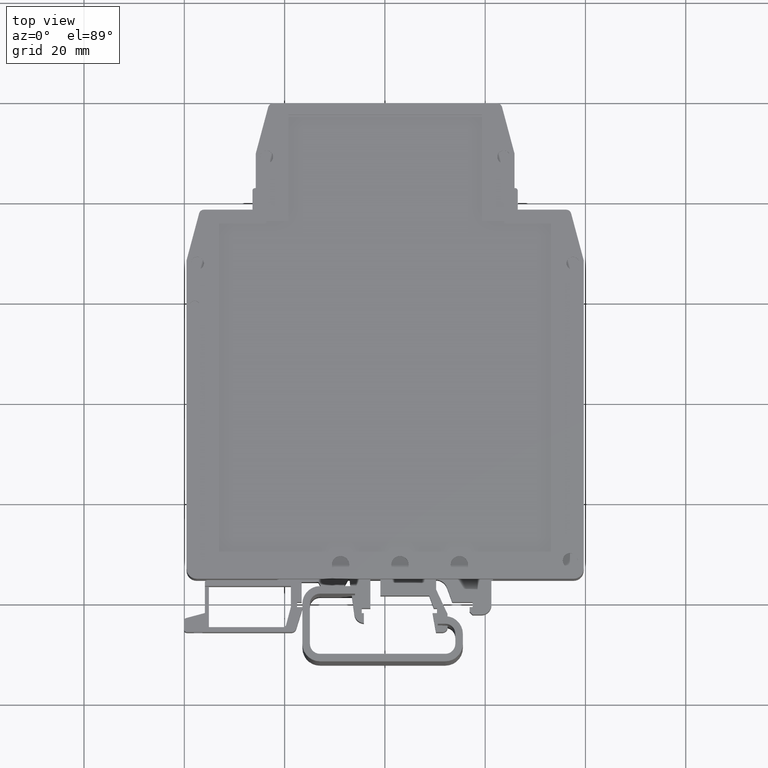
[diagram: clean part render]
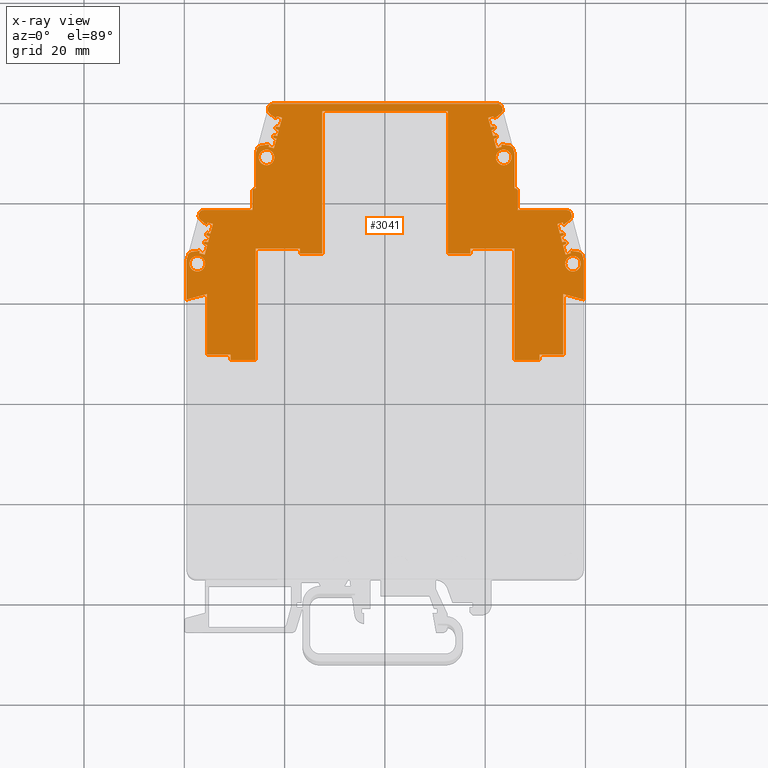
[diagram: x-ray — body ghosted, one internal face saturated and labeled with its STEP entity id]
A machine part, top view, then the same camera in x-ray: the body is ghosted and one INTERNAL B-rep face — a face not visible from any outside direction — is saturated and labeled: STEP entity #3041.
In plain terms, the highlighted planar face has unit normal (0, 0, 1).
Its self-contained STEP definition (entity closure, byte-faithful):
#194=CARTESIAN_POINT('',(-229.453884547556980,119.500269587342020,14.984999999999999));
#195=VERTEX_POINT('',#194);
#196=CARTESIAN_POINT('',(-204.353884547556990,119.500269587342020,14.984999999999999));
#197=VERTEX_POINT('',#196);
#198=CARTESIAN_POINT('',(-229.453884547556980,119.500269587342020,14.984999999999999));
#199=DIRECTION('',(1.0,0.0,0.0));
#200=VECTOR('',#199,25.099999999999994);
#201=LINE('',#198,#200);
#202=EDGE_CURVE('',#195,#197,#201,.T.);
#697=CARTESIAN_POINT('',(-181.506673253517990,97.294239564535403,14.984999999999999));
#698=VERTEX_POINT('',#697);
#705=CARTESIAN_POINT('',(-182.549873145910000,97.014714995824605,14.984999999999999));
#706=VERTEX_POINT('',#705);
#707=CARTESIAN_POINT('',(-181.506673253517990,97.294239564535403,14.984999999999999));
#708=DIRECTION('',(-0.965925826289039,-0.258819045102628,0.0));
#709=VECTOR('',#708,1.079999999999843);
#710=LINE('',#707,#709);
#711=EDGE_CURVE('',#698,#706,#710,.T.);
#1318=CARTESIAN_POINT('',(-186.103884547556990,70.950269600161292,14.984999999999999));
#1319=VERTEX_POINT('',#1318);
#1320=CARTESIAN_POINT('',(-186.103884547556990,69.900269587342095,14.984999999999999));
#1321=VERTEX_POINT('',#1320);
#1322=CARTESIAN_POINT('',(-186.103884547556990,70.950269600161292,14.984999999999999));
#1323=DIRECTION('',(0.0,-1.0,0.0));
#1324=VECTOR('',#1323,1.050000012819197);
#1325=LINE('',#1322,#1324);
#1326=EDGE_CURVE('',#1319,#1321,#1325,.T.);
#1524=CARTESIAN_POINT('',(-190.953884547556980,104.100269587342010,14.984999999999999));
#1525=VERTEX_POINT('',#1524);
#1532=CARTESIAN_POINT('',(-190.453884547556980,103.600269587342010,14.984999999999999));
#1533=VERTEX_POINT('',#1532);
#1534=CARTESIAN_POINT('',(-190.953884547556980,103.600269587342010,14.984999999999999));
#1535=DIRECTION('',(0.0,0.0,-1.0));
#1536=DIRECTION('',(-1.0,0.0,0.0));
#1537=AXIS2_PLACEMENT_3D('',#1534,#1535,#1536);
#1538=CIRCLE('',#1537,0.500000000000000);
#1539=EDGE_CURVE('',#1525,#1533,#1538,.T.);
#1758=CARTESIAN_POINT('',(-179.754227239733010,91.667495321381097,14.984999999999999));
#1759=VERTEX_POINT('',#1758);
#1766=CARTESIAN_POINT('',(-178.383343245611000,91.474830140567093,14.984999999999999));
#1767=VERTEX_POINT('',#1766);
#1768=CARTESIAN_POINT('',(-179.754227239733010,91.667495321381097,14.984999999999999));
#1769=DIRECTION('',(0.990268068741576,-0.139173100960029,0.0));
#1770=VECTOR('',#1769,1.384356455988850);
#1771=LINE('',#1768,#1770);
#1772=EDGE_CURVE('',#1759,#1767,#1771,.T.);
#1798=CARTESIAN_POINT('',(-179.942094057364980,91.455150512027586,14.984999999999999));
#1799=VERTEX_POINT('',#1798);
#1806=CARTESIAN_POINT('',(-179.947886666896010,91.499149749695093,14.984999999999999));
#1807=VERTEX_POINT('',#1806);
#1808=CARTESIAN_POINT('',(-179.777886666895990,91.499149749695093,14.984999999999999));
#1809=DIRECTION('',(0.0,0.0,-1.0));
#1810=DIRECTION('',(-1.0,0.0,0.0));
#1811=AXIS2_PLACEMENT_3D('',#1808,#1809,#1810);
#1812=CIRCLE('',#1811,0.169999999999959);
#1813=EDGE_CURVE('',#1799,#1807,#1812,.T.);
#1833=CARTESIAN_POINT('',(-173.343884547556340,123.555269587342010,14.984999999999999));
#1834=DIRECTION('',(0.0,0.0,1.0));
#1835=DIRECTION('',(1.0,0.0,0.0));
#1836=AXIS2_PLACEMENT_3D('',#1833,#1834,#1835);
#1837=PLANE('',#1836);
#1838=CARTESIAN_POINT('',(-256.503884547556990,89.800269587342214,14.984999999999999));
#1839=VERTEX_POINT('',#1838);
#1840=CARTESIAN_POINT('',(-256.503884547556990,81.943570852453078,14.984999999999999));
#1841=VERTEX_POINT('',#1840);
#1842=CARTESIAN_POINT('',(-256.503884547556990,89.800269587342214,14.984999999999999));
#1843=DIRECTION('',(0.0,-1.0,0.0));
#1844=VECTOR('',#1843,7.856698734889136);
#1845=LINE('',#1842,#1844);
#1846=EDGE_CURVE('',#1839,#1841,#1845,.T.);
#1847=ORIENTED_EDGE('',*,*,#1846,.T.);
#1848=CARTESIAN_POINT('',(-252.428884547556980,83.035463811609901,14.984999999999999));
#1849=VERTEX_POINT('',#1848);
#1850=CARTESIAN_POINT('',(-256.503884547556990,81.943570852453078,14.984999999999999));
#1851=DIRECTION('',(0.965925826289069,0.258819045102519,0.0));
#1852=VECTOR('',#1851,4.218750435171105);
#1853=LINE('',#1850,#1852);
#1854=EDGE_CURVE('',#1841,#1849,#1853,.T.);
#1855=ORIENTED_EDGE('',*,*,#1854,.T.);
#1856=CARTESIAN_POINT('',(-252.428884547556980,70.950269600161008,14.984999999999999));
#1857=VERTEX_POINT('',#1856);
#1858=CARTESIAN_POINT('',(-252.428884547556980,83.035463811609901,14.984999999999999));
#1859=DIRECTION('',(0.0,-1.0,0.0));
#1860=VECTOR('',#1859,12.085194211448893);
#1861=LINE('',#1858,#1860);
#1862=EDGE_CURVE('',#1849,#1857,#1861,.T.);
#1863=ORIENTED_EDGE('',*,*,#1862,.T.);
#1864=CARTESIAN_POINT('',(-247.703884547556980,70.950269600161008,14.984999999999999));
#1865=VERTEX_POINT('',#1864);
#1866=CARTESIAN_POINT('',(-252.428884547556980,70.950269600161008,14.984999999999999));
#1867=DIRECTION('',(1.0,0.0,0.0));
#1868=VECTOR('',#1867,4.724999999999994);
#1869=LINE('',#1866,#1868);
#1870=EDGE_CURVE('',#1857,#1865,#1869,.T.);
#1871=ORIENTED_EDGE('',*,*,#1870,.T.);
#1872=CARTESIAN_POINT('',(-247.703884547556980,69.900269587342095,14.984999999999999));
#1873=VERTEX_POINT('',#1872);
#1874=CARTESIAN_POINT('',(-247.703884547556980,70.950269600161008,14.984999999999999));
#1875=DIRECTION('',(0.0,-1.0,0.0));
#1876=VECTOR('',#1875,1.050000012818913);
#1877=LINE('',#1874,#1876);
#1878=EDGE_CURVE('',#1865,#1873,#1877,.T.);
#1879=ORIENTED_EDGE('',*,*,#1878,.T.);
#1880=CARTESIAN_POINT('',(-242.703884547556980,69.900269587342095,14.984999999999999));
#1881=VERTEX_POINT('',#1880);
#1882=CARTESIAN_POINT('',(-247.703884547556980,69.900269587342095,14.984999999999999));
#1883=DIRECTION('',(1.0,0.0,0.0));
#1884=VECTOR('',#1883,5.0);
#1885=LINE('',#1882,#1884);
#1886=EDGE_CURVE('',#1873,#1881,#1885,.T.);
#1887=ORIENTED_EDGE('',*,*,#1886,.T.);
#1888=CARTESIAN_POINT('',(-242.703884547556980,92.150269600160996,14.984999999999999));
#1889=VERTEX_POINT('',#1888);
#1890=CARTESIAN_POINT('',(-242.703884547556980,69.900269587342095,14.984999999999999));
#1891=DIRECTION('',(0.0,1.0,0.0));
#1892=VECTOR('',#1891,22.250000012818901);
#1893=LINE('',#1890,#1892);
#1894=EDGE_CURVE('',#1881,#1889,#1893,.T.);
#1895=ORIENTED_EDGE('',*,*,#1894,.T.);
#1896=CARTESIAN_POINT('',(-233.903884547556970,92.150269600160996,14.984999999999999));
#1897=VERTEX_POINT('',#1896);
#1898=CARTESIAN_POINT('',(-242.703884547556980,92.150269600160996,14.984999999999999));
#1899=DIRECTION('',(1.0,0.0,0.0));
#1900=VECTOR('',#1899,8.800000000000011);
#1901=LINE('',#1898,#1900);
#1902=EDGE_CURVE('',#1889,#1897,#1901,.T.);
#1903=ORIENTED_EDGE('',*,*,#1902,.T.);
#1904=CARTESIAN_POINT('',(-233.903884547556970,91.100269587342098,14.984999999999999));
#1905=VERTEX_POINT('',#1904);
#1906=CARTESIAN_POINT('',(-233.903884547556970,92.150269600160996,14.984999999999999));
#1907=DIRECTION('',(0.0,-1.0,0.0));
#1908=VECTOR('',#1907,1.050000012818899);
#1909=LINE('',#1906,#1908);
#1910=EDGE_CURVE('',#1897,#1905,#1909,.T.);
#1911=ORIENTED_EDGE('',*,*,#1910,.T.);
#1912=CARTESIAN_POINT('',(-229.453884547556980,91.100269587342098,14.984999999999999));
#1913=VERTEX_POINT('',#1912);
#1914=CARTESIAN_POINT('',(-233.903884547556970,91.100269587342098,14.984999999999999));
#1915=DIRECTION('',(1.0,0.0,0.0));
#1916=VECTOR('',#1915,4.449999999999989);
#1917=LINE('',#1914,#1916);
#1918=EDGE_CURVE('',#1905,#1913,#1917,.T.);
#1919=ORIENTED_EDGE('',*,*,#1918,.T.);
#1920=CARTESIAN_POINT('',(-229.453884547556980,91.100269587342098,14.984999999999999));
#1921=DIRECTION('',(0.0,1.0,0.0));
#1922=VECTOR('',#1921,28.399999999999920);
#1923=LINE('',#1920,#1922);
#1924=EDGE_CURVE('',#1913,#195,#1923,.T.);
#1925=ORIENTED_EDGE('',*,*,#1924,.T.);
#1926=ORIENTED_EDGE('',*,*,#202,.T.);
#1927=CARTESIAN_POINT('',(-204.353884547556990,91.100269587342098,14.984999999999999));
#1928=VERTEX_POINT('',#1927);
#1929=CARTESIAN_POINT('',(-204.353884547556990,119.500269587342020,14.984999999999999));
#1930=DIRECTION('',(0.0,-1.0,0.0));
#1931=VECTOR('',#1930,28.399999999999920);
#1932=LINE('',#1929,#1931);
#1933=EDGE_CURVE('',#197,#1928,#1932,.T.);
#1934=ORIENTED_EDGE('',*,*,#1933,.T.);
#1935=CARTESIAN_POINT('',(-199.903884547556970,91.100269587342098,14.984999999999999));
#1936=VERTEX_POINT('',#1935);
#1937=CARTESIAN_POINT('',(-204.353884547556990,91.100269587342098,14.984999999999999));
#1938=DIRECTION('',(1.0,0.0,0.0));
#1939=VECTOR('',#1938,4.450000000000017);
#1940=LINE('',#1937,#1939);
#1941=EDGE_CURVE('',#1928,#1936,#1940,.T.);
#1942=ORIENTED_EDGE('',*,*,#1941,.T.);
#1943=CARTESIAN_POINT('',(-199.903884547556970,92.150269600161295,14.984999999999999));
#1944=VERTEX_POINT('',#1943);
#1945=CARTESIAN_POINT('',(-199.903884547556970,91.100269587342098,14.984999999999999));
#1946=DIRECTION('',(0.0,1.0,0.0));
#1947=VECTOR('',#1946,1.050000012819197);
#1948=LINE('',#1945,#1947);
#1949=EDGE_CURVE('',#1936,#1944,#1948,.T.);
#1950=ORIENTED_EDGE('',*,*,#1949,.T.);
#1951=CARTESIAN_POINT('',(-191.103884547556990,92.150269600161295,14.984999999999999));
#1952=VERTEX_POINT('',#1951);
#1953=CARTESIAN_POINT('',(-199.903884547556970,92.150269600161295,14.984999999999999));
#1954=DIRECTION('',(1.0,0.0,0.0));
#1955=VECTOR('',#1954,8.799999999999983);
#1956=LINE('',#1953,#1955);
#1957=EDGE_CURVE('',#1944,#1952,#1956,.T.);
#1958=ORIENTED_EDGE('',*,*,#1957,.T.);
#1959=CARTESIAN_POINT('',(-191.103884547556990,69.900269587342095,14.984999999999999));
#1960=VERTEX_POINT('',#1959);
#1961=CARTESIAN_POINT('',(-191.103884547556990,69.900269587342095,14.984999999999999));
#1962=DIRECTION('',(0.0,1.0,0.0));
#1963=VECTOR('',#1962,22.250000012819200);
#1964=LINE('',#1961,#1963);
#1965=EDGE_CURVE('',#1960,#1952,#1964,.T.);
#1966=ORIENTED_EDGE('',*,*,#1965,.F.);
#1967=CARTESIAN_POINT('',(-186.103884547556990,69.900269587342095,14.984999999999999));
#1968=DIRECTION('',(-1.0,0.0,0.0));
#1969=VECTOR('',#1968,5.0);
#1970=LINE('',#1967,#1969);
#1971=EDGE_CURVE('',#1321,#1960,#1970,.T.);
#1972=ORIENTED_EDGE('',*,*,#1971,.F.);
#1973=ORIENTED_EDGE('',*,*,#1326,.F.);
#1974=CARTESIAN_POINT('',(-181.378884547556990,70.950269600161292,14.984999999999999));
#1975=VERTEX_POINT('',#1974);
#1976=CARTESIAN_POINT('',(-181.378884547556990,70.950269600161292,14.984999999999999));
#1977=DIRECTION('',(-1.0,0.0,0.0));
#1978=VECTOR('',#1977,4.724999999999994);
#1979=LINE('',#1976,#1978);
#1980=EDGE_CURVE('',#1975,#1319,#1979,.T.);
#1981=ORIENTED_EDGE('',*,*,#1980,.F.);
#1982=CARTESIAN_POINT('',(-181.378884547556990,83.035463821766498,14.984999999999999));
#1983=VERTEX_POINT('',#1982);
#1984=CARTESIAN_POINT('',(-181.378884547556990,83.035463821766498,14.984999999999999));
#1985=DIRECTION('',(0.0,-1.0,0.0));
#1986=VECTOR('',#1985,12.085194221605207);
#1987=LINE('',#1984,#1986);
#1988=EDGE_CURVE('',#1983,#1975,#1987,.T.);
#1989=ORIENTED_EDGE('',*,*,#1988,.F.);
#1990=CARTESIAN_POINT('',(-177.303884547556980,81.943570862609704,14.984999999999999));
#1991=VERTEX_POINT('',#1990);
#1992=CARTESIAN_POINT('',(-177.303884547556980,81.943570862609704,14.984999999999999));
#1993=DIRECTION('',(-0.965925826289070,0.258819045102513,0.0));
#1994=VECTOR('',#1993,4.218750435171097);
#1995=LINE('',#1992,#1994);
#1996=EDGE_CURVE('',#1991,#1983,#1995,.T.);
#1997=ORIENTED_EDGE('',*,*,#1996,.F.);
#1998=CARTESIAN_POINT('',(-177.303884547556980,89.800269587342001,14.984999999999999));
#1999=VERTEX_POINT('',#1998);
#2000=CARTESIAN_POINT('',(-177.303884547556980,89.800269587342001,14.984999999999999));
#2001=DIRECTION('',(0.0,-1.0,0.0));
#2002=VECTOR('',#2001,7.856698724732297);
#2003=LINE('',#2000,#2002);
#2004=EDGE_CURVE('',#1999,#1991,#2003,.T.);
#2005=ORIENTED_EDGE('',*,*,#2004,.F.);
#2006=CARTESIAN_POINT('',(-177.556590520281990,90.743381116927992,14.984999999999999));
#2007=VERTEX_POINT('',#2006);
#2008=CARTESIAN_POINT('',(-177.556590520281990,90.743381116927992,14.984999999999999));
#2009=DIRECTION('',(0.258819045102486,-0.965925826289078,0.0));
#2010=VECTOR('',#2009,0.976380902050486);
#2011=LINE('',#2008,#2010);
#2012=EDGE_CURVE('',#2007,#1999,#2011,.T.);
#2013=ORIENTED_EDGE('',*,*,#2012,.F.);
#2014=CARTESIAN_POINT('',(-178.522516346571000,90.484562071825493,14.984999999999999));
#2015=DIRECTION('',(0.0,0.0,-1.0));
#2016=DIRECTION('',(-1.0,0.0,0.0));
#2017=AXIS2_PLACEMENT_3D('',#2014,#2015,#2016);
#2018=CIRCLE('',#2017,0.999999999999972);
#2019=EDGE_CURVE('',#1767,#2007,#2018,.T.);
#2020=ORIENTED_EDGE('',*,*,#2019,.F.);
#2021=ORIENTED_EDGE('',*,*,#1772,.F.);
#2022=CARTESIAN_POINT('',(-179.777886666895990,91.499149749695093,14.984999999999999));
#2023=DIRECTION('',(0.0,0.0,-1.0));
#2024=DIRECTION('',(-1.0,0.0,0.0));
#2025=AXIS2_PLACEMENT_3D('',#2022,#2023,#2024);
#2026=CIRCLE('',#2025,0.169999999999959);
#2027=EDGE_CURVE('',#1807,#1759,#2026,.T.);
#2028=ORIENTED_EDGE('',*,*,#2027,.F.);
#2029=ORIENTED_EDGE('',*,*,#1813,.F.);
#2030=CARTESIAN_POINT('',(-179.876113269371980,91.208906858914204,14.984999999999999));
#2031=VERTEX_POINT('',#2030);
#2032=CARTESIAN_POINT('',(-179.876113269371980,91.208906858914204,14.984999999999999));
#2033=DIRECTION('',(-0.258819045102442,0.965925826289090,0.0));
#2034=VECTOR('',#2033,0.254930188645442);
#2035=LINE('',#2032,#2034);
#2036=EDGE_CURVE('',#2031,#1799,#2035,.T.);
#2037=ORIENTED_EDGE('',*,*,#2036,.F.);
#2038=CARTESIAN_POINT('',(-180.919313161764020,90.929382290203506,14.984999999999999));
#2039=VERTEX_POINT('',#2038);
#2040=CARTESIAN_POINT('',(-180.919313161764020,90.929382290203506,14.984999999999999));
#2041=DIRECTION('',(0.965925826289064,0.258819045102536,0.0));
#2042=VECTOR('',#2041,1.079999999999844);
#2043=LINE('',#2040,#2042);
#2044=EDGE_CURVE('',#2039,#2031,#2043,.T.);
#2045=ORIENTED_EDGE('',*,*,#2044,.F.);
#2046=CARTESIAN_POINT('',(-181.424010299713980,92.812937651467195,14.984999999999999));
#2047=VERTEX_POINT('',#2046);
#2048=CARTESIAN_POINT('',(-181.424010299713980,92.812937651467195,14.984999999999999));
#2049=DIRECTION('',(0.258819045102542,-0.965925826289063,0.0));
#2050=VECTOR('',#2049,1.950000000000017);
#2051=LINE('',#2048,#2050);
#2052=EDGE_CURVE('',#2047,#2039,#2051,.T.);
#2053=ORIENTED_EDGE('',*,*,#2052,.F.);
#2054=CARTESIAN_POINT('',(-180.989343677883990,92.929406221763202,14.984999999999999));
#2055=VERTEX_POINT('',#2054);
#2056=CARTESIAN_POINT('',(-180.989343677883990,92.929406221763202,14.984999999999999));
#2057=DIRECTION('',(-0.965925826289125,-0.258819045102307,0.0));
#2058=VECTOR('',#2057,0.449999999999880);
#2059=LINE('',#2056,#2058);
#2060=EDGE_CURVE('',#2055,#2047,#2059,.T.);
#2061=ORIENTED_EDGE('',*,*,#2060,.F.);
#2062=CARTESIAN_POINT('',(-180.766989391415020,93.219183969650004,14.984999999999999));
#2063=VERTEX_POINT('',#2062);
#2064=CARTESIAN_POINT('',(-181.066989391415010,93.219183969650004,14.984999999999999));
#2065=DIRECTION('',(0.0,0.0,-1.0));
#2066=DIRECTION('',(-1.0,0.0,0.0));
#2067=AXIS2_PLACEMENT_3D('',#2064,#2065,#2066);
#2068=CIRCLE('',#2067,0.300000000000040);
#2069=EDGE_CURVE('',#2063,#2055,#2068,.T.);
#2070=ORIENTED_EDGE('',*,*,#2069,.F.);
#2071=CARTESIAN_POINT('',(-181.144635104945990,93.508961717536693,14.984999999999999));
#2072=VERTEX_POINT('',#2071);
#2073=CARTESIAN_POINT('',(-181.066989391415010,93.219183969650004,14.984999999999999));
#2074=DIRECTION('',(0.0,0.0,-1.0));
#2075=DIRECTION('',(-1.0,0.0,0.0));
#2076=AXIS2_PLACEMENT_3D('',#2073,#2074,#2075);
#2077=CIRCLE('',#2076,0.300000000000040);
#2078=EDGE_CURVE('',#2072,#2063,#2077,.T.);
#2079=ORIENTED_EDGE('',*,*,#2078,.F.);
#2080=CARTESIAN_POINT('',(-181.579301726776010,93.392493147240600,14.984999999999999));
#2081=VERTEX_POINT('',#2080);
#2082=CARTESIAN_POINT('',(-181.579301726776010,93.392493147240600,14.984999999999999));
#2083=DIRECTION('',(0.965925826289082,0.258819045102468,0.0));
#2084=VECTOR('',#2083,0.449999999999929);
#2085=LINE('',#2082,#2084);
#2086=EDGE_CURVE('',#2081,#2072,#2085,.T.);
#2087=ORIENTED_EDGE('',*,*,#2086,.F.);
#2088=CARTESIAN_POINT('',(-181.889884580899040,94.551604138787496,14.984999999999999));
#2089=VERTEX_POINT('',#2088);
#2090=CARTESIAN_POINT('',(-181.889884580899040,94.551604138787496,14.984999999999999));
#2091=DIRECTION('',(0.258819045102519,-0.965925826289069,0.0));
#2092=VECTOR('',#2091,1.200000000000014);
#2093=LINE('',#2090,#2092);
#2094=EDGE_CURVE('',#2089,#2081,#2093,.T.);
#2095=ORIENTED_EDGE('',*,*,#2094,.F.);
#2096=CARTESIAN_POINT('',(-181.455217959069020,94.668072709083603,14.984999999999999));
#2097=VERTEX_POINT('',#2096);
#2098=CARTESIAN_POINT('',(-181.455217959069020,94.668072709083603,14.984999999999999));
#2099=DIRECTION('',(-0.965925826289074,-0.258819045102498,0.0));
#2100=VECTOR('',#2099,0.449999999999933);
#2101=LINE('',#2098,#2100);
#2102=EDGE_CURVE('',#2097,#2089,#2101,.T.);
#2103=ORIENTED_EDGE('',*,*,#2102,.F.);
#2104=CARTESIAN_POINT('',(-181.232863672599020,94.957850456970306,14.984999999999999));
#2105=VERTEX_POINT('',#2104);
#2106=CARTESIAN_POINT('',(-181.532863672599030,94.957850456970306,14.984999999999999));
#2107=DIRECTION('',(0.0,0.0,-1.0));
#2108=DIRECTION('',(-1.0,0.0,0.0));
#2109=AXIS2_PLACEMENT_3D('',#2106,#2107,#2108);
#2110=CIRCLE('',#2109,0.300000000000011);
#2111=EDGE_CURVE('',#2105,#2097,#2110,.T.);
#2112=ORIENTED_EDGE('',*,*,#2111,.F.);
#2113=CARTESIAN_POINT('',(-181.610509386129990,95.247628204857094,14.984999999999999));
#2114=VERTEX_POINT('',#2113);
#2115=CARTESIAN_POINT('',(-181.532863672599030,94.957850456970306,14.984999999999999));
#2116=DIRECTION('',(0.0,0.0,-1.0));
#2117=DIRECTION('',(-1.0,0.0,0.0));
#2118=AXIS2_PLACEMENT_3D('',#2115,#2116,#2117);
#2119=CIRCLE('',#2118,0.300000000000011);
#2120=EDGE_CURVE('',#2114,#2105,#2119,.T.);
#2121=ORIENTED_EDGE('',*,*,#2120,.F.);
#2122=CARTESIAN_POINT('',(-182.045176007960010,95.131159634560902,14.984999999999999));
#2123=VERTEX_POINT('',#2122);
#2124=CARTESIAN_POINT('',(-182.045176007960010,95.131159634560902,14.984999999999999));
#2125=DIRECTION('',(0.965925826289027,0.258819045102675,0.0));
#2126=VECTOR('',#2125,0.449999999999955);
#2127=LINE('',#2124,#2126);
#2128=EDGE_CURVE('',#2123,#2114,#2127,.T.);
#2129=ORIENTED_EDGE('',*,*,#2128,.F.);
#2130=CARTESIAN_POINT('',(-182.549873145910000,97.014714995824605,14.984999999999999));
#2131=DIRECTION('',(0.258819045102554,-0.965925826289059,0.0));
#2132=VECTOR('',#2131,1.950000000000038);
#2133=LINE('',#2130,#2132);
#2134=EDGE_CURVE('',#706,#2123,#2133,.T.);
#2135=ORIENTED_EDGE('',*,*,#2134,.F.);
#2136=ORIENTED_EDGE('',*,*,#711,.F.);
#2137=CARTESIAN_POINT('',(-181.440692465524990,97.047995911422007,14.984999999999999));
#2138=VERTEX_POINT('',#2137);
#2139=CARTESIAN_POINT('',(-181.440692465524990,97.047995911422007,14.984999999999999));
#2140=DIRECTION('',(-0.258819045102428,0.965925826289093,0.0));
#2141=VECTOR('',#2140,0.254930188645456);
#2142=LINE('',#2139,#2141);
#2143=EDGE_CURVE('',#2138,#698,#2142,.T.);
#2144=ORIENTED_EDGE('',*,*,#2143,.F.);
#2145=CARTESIAN_POINT('',(-181.171822624250980,96.958033320976099,14.984999999999999));
#2146=VERTEX_POINT('',#2145);
#2147=CARTESIAN_POINT('',(-181.276485075056000,97.091995149089300,14.984999999999999));
#2148=DIRECTION('',(0.0,0.0,-1.0));
#2149=DIRECTION('',(-1.0,0.0,0.0));
#2150=AXIS2_PLACEMENT_3D('',#2147,#2148,#2149);
#2151=CIRCLE('',#2150,0.170000000000073);
#2152=EDGE_CURVE('',#2146,#2138,#2151,.T.);
#2153=ORIENTED_EDGE('',*,*,#2152,.F.);
#2154=CARTESIAN_POINT('',(-180.080934850105990,97.810328259046997,14.984999999999999));
#2155=VERTEX_POINT('',#2154);
#2156=CARTESIAN_POINT('',(-180.080934850105990,97.810328259046997,14.984999999999999));
#2157=DIRECTION('',(-0.788010753606893,-0.615661475325439,0.0));
#2158=VECTOR('',#2157,1.384356455989672);
#2159=LINE('',#2156,#2158);
#2160=EDGE_CURVE('',#2155,#2146,#2159,.T.);
#2161=ORIENTED_EDGE('',*,*,#2160,.F.);
#2162=CARTESIAN_POINT('',(-179.696596325432010,98.598339012653710,14.984999999999999));
#2163=VERTEX_POINT('',#2162);
#2164=CARTESIAN_POINT('',(-180.696596325432010,98.598339012653710,14.984999999999999));
#2165=DIRECTION('',(0.0,0.0,-1.0));
#2166=DIRECTION('',(-1.0,0.0,0.0));
#2167=AXIS2_PLACEMENT_3D('',#2164,#2165,#2166);
#2168=CIRCLE('',#2167,0.999999999999943);
#2169=EDGE_CURVE('',#2163,#2155,#2168,.T.);
#2170=ORIENTED_EDGE('',*,*,#2169,.F.);
#2171=CARTESIAN_POINT('',(-179.730670499143030,98.857158057756209,14.984999999999999));
#2172=VERTEX_POINT('',#2171);
#2173=CARTESIAN_POINT('',(-180.696596325432010,98.598339012653710,14.984999999999999));
#2174=DIRECTION('',(0.0,0.0,-1.0));
#2175=DIRECTION('',(-1.0,0.0,0.0));
#2176=AXIS2_PLACEMENT_3D('',#2173,#2174,#2175);
#2177=CIRCLE('',#2176,0.999999999999943);
#2178=EDGE_CURVE('',#2172,#2163,#2177,.T.);
#2179=ORIENTED_EDGE('',*,*,#2178,.F.);
#2180=CARTESIAN_POINT('',(-179.784777633558010,99.059088632444713,14.984999999999999));
#2181=VERTEX_POINT('',#2180);
#2182=CARTESIAN_POINT('',(-179.784777633558010,99.059088632444713,14.984999999999999));
#2183=DIRECTION('',(0.258819045102699,-0.965925826289020,0.0));
#2184=VECTOR('',#2183,0.209053914071538);
#2185=LINE('',#2182,#2184);
#2186=EDGE_CURVE('',#2181,#2172,#2185,.T.);
#2187=ORIENTED_EDGE('',*,*,#2186,.F.);
#2188=CARTESIAN_POINT('',(-180.750703459846990,99.800269587342100,14.984999999999999));
#2189=VERTEX_POINT('',#2188);
#2190=CARTESIAN_POINT('',(-180.750703459846990,98.800269587342100,14.984999999999999));
#2191=DIRECTION('',(0.0,0.0,-1.0));
#2192=DIRECTION('',(-1.0,0.0,0.0));
#2193=AXIS2_PLACEMENT_3D('',#2190,#2191,#2192);
#2194=CIRCLE('',#2193,1.0);
#2195=EDGE_CURVE('',#2189,#2181,#2194,.T.);
#2196=ORIENTED_EDGE('',*,*,#2195,.F.);
#2197=CARTESIAN_POINT('',(-190.453884547556980,99.800269587342100,14.984999999999999));
#2198=VERTEX_POINT('',#2197);
#2199=CARTESIAN_POINT('',(-190.453884547556980,99.800269587342100,14.984999999999999));
#2200=DIRECTION('',(1.0,0.0,0.0));
#2201=VECTOR('',#2200,9.703181087709993);
#2202=LINE('',#2199,#2201);
#2203=EDGE_CURVE('',#2198,#2189,#2202,.T.);
#2204=ORIENTED_EDGE('',*,*,#2203,.F.);
#2205=CARTESIAN_POINT('',(-190.453884547556980,103.600269587342010,14.984999999999999));
#2206=DIRECTION('',(0.0,-1.0,0.0));
#2207=VECTOR('',#2206,3.799999999999912);
#2208=LINE('',#2205,#2207);
#2209=EDGE_CURVE('',#1533,#2198,#2208,.T.);
#2210=ORIENTED_EDGE('',*,*,#2209,.F.);
#2211=ORIENTED_EDGE('',*,*,#1539,.F.);
#2212=CARTESIAN_POINT('',(-191.103884547556990,104.100269587342010,14.984999999999999));
#2213=VERTEX_POINT('',#2212);
#2214=CARTESIAN_POINT('',(-191.103884547556990,104.100269587342010,14.984999999999999));
#2215=DIRECTION('',(1.0,0.0,0.0));
#2216=VECTOR('',#2215,0.150000000000006);
#2217=LINE('',#2214,#2216);
#2218=EDGE_CURVE('',#2213,#1525,#2217,.T.);
#2219=ORIENTED_EDGE('',*,*,#2218,.F.);
#2220=CARTESIAN_POINT('',(-191.103884547556990,111.000269587342020,14.984999999999999));
#2221=VERTEX_POINT('',#2220);
#2222=CARTESIAN_POINT('',(-191.103884547556990,104.100269587342010,14.984999999999999));
#2223=DIRECTION('',(0.0,1.0,0.0));
#2224=VECTOR('',#2223,6.900000000000006);
#2225=LINE('',#2222,#2224);
#2226=EDGE_CURVE('',#2213,#2221,#2225,.T.);
#2227=ORIENTED_EDGE('',*,*,#2226,.T.);
#2228=CARTESIAN_POINT('',(-191.356590520282000,111.943381116928010,14.984999999999999));
#2229=VERTEX_POINT('',#2228);
#2230=CARTESIAN_POINT('',(-191.103884547556990,111.000269587342020,14.984999999999999));
#2231=DIRECTION('',(-0.258819045102486,0.965925826289078,0.0));
#2232=VECTOR('',#2231,0.976380902050486);
#2233=LINE('',#2230,#2232);
#2234=EDGE_CURVE('',#2221,#2229,#2233,.T.);
#2235=ORIENTED_EDGE('',*,*,#2234,.T.);
#2236=CARTESIAN_POINT('',(-192.183343245610980,112.674830140567000,14.984999999999999));
#2237=VERTEX_POINT('',#2236);
#2238=CARTESIAN_POINT('',(-192.322516346571010,111.684562071826010,14.984999999999999));
#2239=DIRECTION('',(0.0,0.0,1.0));
#2240=DIRECTION('',(1.0,0.0,0.0));
#2241=AXIS2_PLACEMENT_3D('',#2238,#2239,#2240);
#2242=CIRCLE('',#2241,1.000000000000028);
#2243=EDGE_CURVE('',#2229,#2237,#2242,.T.);
#2244=ORIENTED_EDGE('',*,*,#2243,.T.);
#2245=CARTESIAN_POINT('',(-193.554227239733020,112.867495321380990,14.984999999999999));
#2246=VERTEX_POINT('',#2245);
#2247=CARTESIAN_POINT('',(-192.183343245610980,112.674830140567000,14.984999999999999));
#2248=DIRECTION('',(-0.990268068741577,0.139173100960016,0.0));
#2249=VECTOR('',#2248,1.384356455988876);
#2250=LINE('',#2247,#2249);
#2251=EDGE_CURVE('',#2237,#2246,#2250,.T.);
#2252=ORIENTED_EDGE('',*,*,#2251,.T.);
#2253=CARTESIAN_POINT('',(-193.747886666896020,112.699149749695010,14.984999999999999));
#2254=VERTEX_POINT('',#2253);
#2255=CARTESIAN_POINT('',(-193.577886666896010,112.699149749695010,14.984999999999999));
#2256=DIRECTION('',(0.0,0.0,1.0));
#2257=DIRECTION('',(1.0,0.0,0.0));
#2258=AXIS2_PLACEMENT_3D('',#2255,#2256,#2257);
#2259=CIRCLE('',#2258,0.169999999999959);
#2260=EDGE_CURVE('',#2246,#2254,#2259,.T.);
#2261=ORIENTED_EDGE('',*,*,#2260,.T.);
#2262=CARTESIAN_POINT('',(-193.742094057364990,112.655150512027990,14.984999999999999));
#2263=VERTEX_POINT('',#2262);
#2264=CARTESIAN_POINT('',(-193.577886666896010,112.699149749695010,14.984999999999999));
#2265=DIRECTION('',(0.0,0.0,1.0));
#2266=DIRECTION('',(1.0,0.0,0.0));
#2267=AXIS2_PLACEMENT_3D('',#2264,#2265,#2266);
#2268=CIRCLE('',#2267,0.169999999999959);
#2269=EDGE_CURVE('',#2254,#2263,#2268,.T.);
#2270=ORIENTED_EDGE('',*,*,#2269,.T.);
#2271=CARTESIAN_POINT('',(-193.676113269372000,112.408906858913990,14.984999999999999));
#2272=VERTEX_POINT('',#2271);
#2273=CARTESIAN_POINT('',(-193.742094057364990,112.655150512027990,14.984999999999999));
#2274=DIRECTION('',(0.258819045101842,-0.965925826289250,0.0));
#2275=VECTOR('',#2274,0.254930188646032);
#2276=LINE('',#2273,#2275);
#2277=EDGE_CURVE('',#2263,#2272,#2276,.T.);
#2278=ORIENTED_EDGE('',*,*,#2277,.T.);
#2279=CARTESIAN_POINT('',(-194.719313161764010,112.129382290202980,14.984999999999999));
#2280=VERTEX_POINT('',#2279);
#2281=CARTESIAN_POINT('',(-193.676113269372000,112.408906858913990,14.984999999999999));
#2282=DIRECTION('',(-0.965925826288990,-0.258819045102813,0.0));
#2283=VECTOR('',#2282,1.079999999999898);
#2284=LINE('',#2281,#2283);
#2285=EDGE_CURVE('',#2272,#2280,#2284,.T.);
#2286=ORIENTED_EDGE('',*,*,#2285,.T.);
#2287=CARTESIAN_POINT('',(-195.224010299714000,114.012937651467000,14.984999999999999));
#2288=VERTEX_POINT('',#2287);
#2289=CARTESIAN_POINT('',(-194.719313161764010,112.129382290202980,14.984999999999999));
#2290=DIRECTION('',(-0.258819045102514,0.965925826289070,0.0));
#2291=VECTOR('',#2290,1.950000000000340);
#2292=LINE('',#2289,#2291);
#2293=EDGE_CURVE('',#2280,#2288,#2292,.T.);
#2294=ORIENTED_EDGE('',*,*,#2293,.T.);
#2295=CARTESIAN_POINT('',(-194.789343677884010,114.129406221762990,14.984999999999999));
#2296=VERTEX_POINT('',#2295);
#2297=CARTESIAN_POINT('',(-195.224010299714000,114.012937651467000,14.984999999999999));
#2298=DIRECTION('',(0.965925826289133,0.258819045102278,0.0));
#2299=VECTOR('',#2298,0.449999999999876);
#2300=LINE('',#2297,#2299);
#2301=EDGE_CURVE('',#2288,#2296,#2300,.T.);
#2302=ORIENTED_EDGE('',*,*,#2301,.T.);
#2303=CARTESIAN_POINT('',(-194.566989391415010,114.419183969649990,14.984999999999999));
#2304=VERTEX_POINT('',#2303);
#2305=CARTESIAN_POINT('',(-194.866989391415020,114.419183969649990,14.984999999999999));
#2306=DIRECTION('',(0.0,0.0,1.0));
#2307=DIRECTION('',(1.0,0.0,0.0));
#2308=AXIS2_PLACEMENT_3D('',#2305,#2306,#2307);
#2309=CIRCLE('',#2308,0.299999999999983);
#2310=EDGE_CURVE('',#2296,#2304,#2309,.T.);
#2311=ORIENTED_EDGE('',*,*,#2310,.T.);
#2312=CARTESIAN_POINT('',(-194.944635104946000,114.708961717536990,14.984999999999999));
#2313=VERTEX_POINT('',#2312);
#2314=CARTESIAN_POINT('',(-194.866989391415020,114.419183969649990,14.984999999999999));
#2315=DIRECTION('',(0.0,0.0,1.0));
#2316=DIRECTION('',(1.0,0.0,0.0));
#2317=AXIS2_PLACEMENT_3D('',#2314,#2315,#2316);
#2318=CIRCLE('',#2317,0.299999999999983);
#2319=EDGE_CURVE('',#2304,#2313,#2318,.T.);
#2320=ORIENTED_EDGE('',*,*,#2319,.T.);
#2321=CARTESIAN_POINT('',(-195.379301726775990,114.592493147241000,14.984999999999999));
#2322=VERTEX_POINT('',#2321);
#2323=CARTESIAN_POINT('',(-194.944635104946000,114.708961717536990,14.984999999999999));
#2324=DIRECTION('',(-0.965925826289133,-0.258819045102278,0.0));
#2325=VECTOR('',#2324,0.449999999999876);
#2326=LINE('',#2323,#2325);
#2327=EDGE_CURVE('',#2313,#2322,#2326,.T.);
#2328=ORIENTED_EDGE('',*,*,#2327,.T.);
#2329=CARTESIAN_POINT('',(-195.689884580899020,115.751604138787000,14.984999999999999));
#2330=VERTEX_POINT('',#2329);
#2331=CARTESIAN_POINT('',(-195.379301726775990,114.592493147241000,14.984999999999999));
#2332=DIRECTION('',(-0.258819045102706,0.965925826289019,0.0));
#2333=VECTOR('',#2332,1.199999999999150);
#2334=LINE('',#2331,#2333);
#2335=EDGE_CURVE('',#2322,#2330,#2334,.T.);
#2336=ORIENTED_EDGE('',*,*,#2335,.T.);
#2337=CARTESIAN_POINT('',(-195.255217959069030,115.868072709084000,14.984999999999999));
#2338=VERTEX_POINT('',#2337);
#2339=CARTESIAN_POINT('',(-195.689884580899020,115.751604138787000,14.984999999999999));
#2340=DIRECTION('',(0.965925826288573,0.258819045104370,0.0));
#2341=VECTOR('',#2340,0.450000000000137);
#2342=LINE('',#2339,#2341);
#2343=EDGE_CURVE('',#2330,#2338,#2342,.T.);
#2344=ORIENTED_EDGE('',*,*,#2343,.T.);
#2345=CARTESIAN_POINT('',(-195.032863672600000,116.157850456970010,14.984999999999999));
#2346=VERTEX_POINT('',#2345);
#2347=CARTESIAN_POINT('',(-195.332863672600010,116.157850456970010,14.984999999999999));
#2348=DIRECTION('',(0.0,0.0,1.0));
#2349=DIRECTION('',(1.0,0.0,0.0));
#2350=AXIS2_PLACEMENT_3D('',#2347,#2348,#2349);
#2351=CIRCLE('',#2350,0.299999999999983);
#2352=EDGE_CURVE('',#2338,#2346,#2351,.T.);
#2353=ORIENTED_EDGE('',*,*,#2352,.T.);
#2354=CARTESIAN_POINT('',(-195.410509386130000,116.447628204856980,14.984999999999999));
#2355=VERTEX_POINT('',#2354);
#2356=CARTESIAN_POINT('',(-195.332863672600010,116.157850456970010,14.984999999999999));
#2357=DIRECTION('',(0.0,0.0,1.0));
#2358=DIRECTION('',(1.0,0.0,0.0));
#2359=AXIS2_PLACEMENT_3D('',#2356,#2357,#2358);
#2360=CIRCLE('',#2359,0.299999999999983);
#2361=EDGE_CURVE('',#2346,#2355,#2360,.T.);
#2362=ORIENTED_EDGE('',*,*,#2361,.T.);
#2363=CARTESIAN_POINT('',(-195.845176007961020,116.331159634561000,14.984999999999999));
#2364=VERTEX_POINT('',#2363);
#2365=CARTESIAN_POINT('',(-195.410509386130000,116.447628204856980,14.984999999999999));
#2366=DIRECTION('',(-0.965925826289294,-0.258819045101680,0.0));
#2367=VECTOR('',#2366,0.450000000000861);
#2368=LINE('',#2365,#2367);
#2369=EDGE_CURVE('',#2355,#2364,#2368,.T.);
#2370=ORIENTED_EDGE('',*,*,#2369,.T.);
#2371=CARTESIAN_POINT('',(-196.349873145910010,118.214714995824990,14.984999999999999));
#2372=VERTEX_POINT('',#2371);
#2373=CARTESIAN_POINT('',(-195.845176007961020,116.331159634561000,14.984999999999999));
#2374=DIRECTION('',(-0.258819045102041,0.965925826289197,0.0));
#2375=VECTOR('',#2374,1.950000000000055);
#2376=LINE('',#2373,#2375);
#2377=EDGE_CURVE('',#2364,#2372,#2376,.T.);
#2378=ORIENTED_EDGE('',*,*,#2377,.T.);
#2379=CARTESIAN_POINT('',(-195.306673253518000,118.494239564534990,14.984999999999999));
#2380=VERTEX_POINT('',#2379);
#2381=CARTESIAN_POINT('',(-196.349873145910010,118.214714995824990,14.984999999999999));
#2382=DIRECTION('',(0.965925826289224,0.258819045101941,0.0));
#2383=VECTOR('',#2382,1.079999999999637);
#2384=LINE('',#2381,#2383);
#2385=EDGE_CURVE('',#2372,#2380,#2384,.T.);
#2386=ORIENTED_EDGE('',*,*,#2385,.T.);
#2387=CARTESIAN_POINT('',(-195.240692465525000,118.247995911422010,14.984999999999999));
#2388=VERTEX_POINT('',#2387);
#2389=CARTESIAN_POINT('',(-195.306673253518000,118.494239564534990,14.984999999999999));
#2390=DIRECTION('',(0.258819045102832,-0.965925826288985,0.0));
#2391=VECTOR('',#2390,0.254930188645057);
#2392=LINE('',#2389,#2391);
#2393=EDGE_CURVE('',#2380,#2388,#2392,.T.);
#2394=ORIENTED_EDGE('',*,*,#2393,.T.);
#2395=CARTESIAN_POINT('',(-194.971822624250990,118.158033320975990,14.984999999999999));
#2396=VERTEX_POINT('',#2395);
#2397=CARTESIAN_POINT('',(-195.076485075056010,118.291995149089000,14.984999999999999));
#2398=DIRECTION('',(0.0,0.0,1.0));
#2399=DIRECTION('',(1.0,0.0,0.0));
#2400=AXIS2_PLACEMENT_3D('',#2397,#2398,#2399);
#2401=CIRCLE('',#2400,0.169999999999959);
#2402=EDGE_CURVE('',#2388,#2396,#2401,.T.);
#2403=ORIENTED_EDGE('',*,*,#2402,.T.);
#2404=CARTESIAN_POINT('',(-193.880934850106000,119.010328259046990,14.984999999999999));
#2405=VERTEX_POINT('',#2404);
#2406=CARTESIAN_POINT('',(-194.971822624250990,118.158033320975990,14.984999999999999));
#2407=DIRECTION('',(0.788010753606858,0.615661475325484,0.0));
#2408=VECTOR('',#2407,1.384356455989733);
#2409=LINE('',#2406,#2408);
#2410=EDGE_CURVE('',#2396,#2405,#2409,.T.);
#2411=ORIENTED_EDGE('',*,*,#2410,.T.);
#2412=CARTESIAN_POINT('',(-193.496596325431990,119.798339012654000,14.984999999999999));
#2413=VERTEX_POINT('',#2412);
#2414=CARTESIAN_POINT('',(-194.496596325431990,119.798339012654000,14.984999999999999));
#2415=DIRECTION('',(0.0,0.0,1.0));
#2416=DIRECTION('',(1.0,0.0,0.0));
#2417=AXIS2_PLACEMENT_3D('',#2414,#2415,#2416);
#2418=CIRCLE('',#2417,1.0);
#2419=EDGE_CURVE('',#2405,#2413,#2418,.T.);
#2420=ORIENTED_EDGE('',*,*,#2419,.T.);
#2421=CARTESIAN_POINT('',(-193.530670499143010,120.057158057756010,14.984999999999999));
#2422=VERTEX_POINT('',#2421);
#2423=CARTESIAN_POINT('',(-194.496596325431990,119.798339012654000,14.984999999999999));
#2424=DIRECTION('',(0.0,0.0,1.0));
#2425=DIRECTION('',(1.0,0.0,0.0));
#2426=AXIS2_PLACEMENT_3D('',#2423,#2424,#2425);
#2427=CIRCLE('',#2426,1.0);
#2428=EDGE_CURVE('',#2413,#2422,#2427,.T.);
#2429=ORIENTED_EDGE('',*,*,#2428,.T.);
#2430=CARTESIAN_POINT('',(-193.584777633557990,120.259088632444990,14.984999999999999));
#2431=VERTEX_POINT('',#2430);
#2432=CARTESIAN_POINT('',(-193.530670499143010,120.057158057756010,14.984999999999999));
#2433=DIRECTION('',(-0.258819045102138,0.965925826289171,0.0));
#2434=VECTOR('',#2433,0.209053914071991);
#2435=LINE('',#2432,#2434);
#2436=EDGE_CURVE('',#2422,#2431,#2435,.T.);
#2437=ORIENTED_EDGE('',*,*,#2436,.T.);
#2438=CARTESIAN_POINT('',(-194.550703459847000,121.000269587342020,14.984999999999999));
#2439=VERTEX_POINT('',#2438);
#2440=CARTESIAN_POINT('',(-194.550703459847000,120.000269587342020,14.984999999999999));
#2441=DIRECTION('',(0.0,0.0,1.0));
#2442=DIRECTION('',(1.0,0.0,0.0));
#2443=AXIS2_PLACEMENT_3D('',#2440,#2441,#2442);
#2444=CIRCLE('',#2443,0.999999999999943);
#2445=EDGE_CURVE('',#2431,#2439,#2444,.T.);
#2446=ORIENTED_EDGE('',*,*,#2445,.T.);
#2447=CARTESIAN_POINT('',(-239.257065635267000,121.000269587342020,14.984999999999999));
#2448=VERTEX_POINT('',#2447);
#2449=CARTESIAN_POINT('',(-194.550703459847000,121.000269587342020,14.984999999999999));
#2450=DIRECTION('',(-1.0,0.0,0.0));
#2451=VECTOR('',#2450,44.706362175419997);
#2452=LINE('',#2449,#2451);
#2453=EDGE_CURVE('',#2439,#2448,#2452,.T.);
#2454=ORIENTED_EDGE('',*,*,#2453,.T.);
#2455=CARTESIAN_POINT('',(-240.222991461556010,120.259088632444990,14.984999999999999));
#2456=VERTEX_POINT('',#2455);
#2457=CARTESIAN_POINT('',(-239.257065635267000,120.000269587342020,14.984999999999999));
#2458=DIRECTION('',(0.0,0.0,1.0));
#2459=DIRECTION('',(1.0,0.0,0.0));
#2460=AXIS2_PLACEMENT_3D('',#2457,#2458,#2459);
#2461=CIRCLE('',#2460,1.0);
#2462=EDGE_CURVE('',#2448,#2456,#2461,.T.);
#2463=ORIENTED_EDGE('',*,*,#2462,.T.);
#2464=CARTESIAN_POINT('',(-240.277098595970980,120.057158057756010,14.984999999999999));
#2465=VERTEX_POINT('',#2464);
#2466=CARTESIAN_POINT('',(-240.222991461556010,120.259088632444990,14.984999999999999));
#2467=DIRECTION('',(-0.258819045102138,-0.965925826289171,0.0));
#2468=VECTOR('',#2467,0.209053914071991);
#2469=LINE('',#2466,#2468);
#2470=EDGE_CURVE('',#2456,#2465,#2469,.T.);
#2471=ORIENTED_EDGE('',*,*,#2470,.T.);
#2472=CARTESIAN_POINT('',(-240.311172769680980,119.798339012654000,14.984999999999999));
#2473=VERTEX_POINT('',#2472);
#2474=CARTESIAN_POINT('',(-239.311172769680980,119.798339012654000,14.984999999999999));
#2475=DIRECTION('',(0.0,0.0,1.0));
#2476=DIRECTION('',(1.0,0.0,0.0));
#2477=AXIS2_PLACEMENT_3D('',#2474,#2475,#2476);
#2478=CIRCLE('',#2477,0.999999999999943);
#2479=EDGE_CURVE('',#2465,#2473,#2478,.T.);
#2480=ORIENTED_EDGE('',*,*,#2479,.T.);
#2481=CARTESIAN_POINT('',(-239.926834245007000,119.010328259046990,14.984999999999999));
#2482=VERTEX_POINT('',#2481);
#2483=CARTESIAN_POINT('',(-239.311172769680980,119.798339012654000,14.984999999999999));
#2484=DIRECTION('',(0.0,0.0,1.0));
#2485=DIRECTION('',(1.0,0.0,0.0));
#2486=AXIS2_PLACEMENT_3D('',#2483,#2484,#2485);
#2487=CIRCLE('',#2486,0.999999999999943);
#2488=EDGE_CURVE('',#2473,#2482,#2487,.T.);
#2489=ORIENTED_EDGE('',*,*,#2488,.T.);
#2490=CARTESIAN_POINT('',(-238.835946470862980,118.158033320975990,14.984999999999999));
#2491=VERTEX_POINT('',#2490);
#2492=CARTESIAN_POINT('',(-239.926834245007000,119.010328259046990,14.984999999999999));
#2493=DIRECTION('',(0.788010753606593,-0.615661475325823,0.0));
#2494=VECTOR('',#2493,1.384356455988971);
#2495=LINE('',#2492,#2494);
#2496=EDGE_CURVE('',#2482,#2491,#2495,.T.);
#2497=ORIENTED_EDGE('',*,*,#2496,.T.);
#2498=CARTESIAN_POINT('',(-238.567076629588030,118.247995911422010,14.984999999999999));
#2499=VERTEX_POINT('',#2498);
#2500=CARTESIAN_POINT('',(-238.731284020058010,118.291995149089000,14.984999999999999));
#2501=DIRECTION('',(0.0,0.0,1.0));
#2502=DIRECTION('',(1.0,0.0,0.0));
#2503=AXIS2_PLACEMENT_3D('',#2500,#2501,#2502);
#2504=CIRCLE('',#2503,0.169999999999987);
#2505=EDGE_CURVE('',#2491,#2499,#2504,.T.);
#2506=ORIENTED_EDGE('',*,*,#2505,.T.);
#2507=CARTESIAN_POINT('',(-238.501095841595000,118.494239564534990,14.984999999999999));
#2508=VERTEX_POINT('',#2507);
#2509=CARTESIAN_POINT('',(-238.567076629588030,118.247995911422010,14.984999999999999));
#2510=DIRECTION('',(0.258819045102936,0.965925826288957,0.0));
#2511=VECTOR('',#2510,0.254930188645065);
#2512=LINE('',#2509,#2511);
#2513=EDGE_CURVE('',#2499,#2508,#2512,.T.);
#2514=ORIENTED_EDGE('',*,*,#2513,.T.);
#2515=CARTESIAN_POINT('',(-237.457895949203020,118.214714995824990,14.984999999999999));
#2516=VERTEX_POINT('',#2515);
#2517=CARTESIAN_POINT('',(-238.501095841595000,118.494239564534990,14.984999999999999));
#2518=DIRECTION('',(0.965925826289222,-0.258819045101947,0.0));
#2519=VECTOR('',#2518,1.079999999999609);
#2520=LINE('',#2517,#2519);
#2521=EDGE_CURVE('',#2508,#2516,#2520,.T.);
#2522=ORIENTED_EDGE('',*,*,#2521,.T.);
#2523=CARTESIAN_POINT('',(-237.962593087152980,116.331159634561000,14.984999999999999));
#2524=VERTEX_POINT('',#2523);
#2525=CARTESIAN_POINT('',(-237.457895949203020,118.214714995824990,14.984999999999999));
#2526=DIRECTION('',(-0.258819045102504,-0.965925826289073,0.0));
#2527=VECTOR('',#2526,1.950000000000305);
#2528=LINE('',#2525,#2527);
#2529=EDGE_CURVE('',#2516,#2524,#2528,.T.);
#2530=ORIENTED_EDGE('',*,*,#2529,.T.);
#2531=CARTESIAN_POINT('',(-238.397259708984000,116.447628204856980,14.984999999999999));
#2532=VERTEX_POINT('',#2531);
#2533=CARTESIAN_POINT('',(-237.962593087152980,116.331159634561000,14.984999999999999));
#2534=DIRECTION('',(-0.965925826289294,0.258819045101680,0.0));
#2535=VECTOR('',#2534,0.450000000000861);
#2536=LINE('',#2533,#2535);
#2537=EDGE_CURVE('',#2524,#2532,#2536,.T.);
#2538=ORIENTED_EDGE('',*,*,#2537,.T.);
#2539=CARTESIAN_POINT('',(-238.774905422514000,116.157850456970010,14.984999999999999));
#2540=VERTEX_POINT('',#2539);
#2541=CARTESIAN_POINT('',(-238.474905422513980,116.157850456970010,14.984999999999999));
#2542=DIRECTION('',(0.0,0.0,1.0));
#2543=DIRECTION('',(1.0,0.0,0.0));
#2544=AXIS2_PLACEMENT_3D('',#2541,#2542,#2543);
#2545=CIRCLE('',#2544,0.299999999999983);
#2546=EDGE_CURVE('',#2532,#2540,#2545,.T.);
#2547=ORIENTED_EDGE('',*,*,#2546,.T.);
#2548=CARTESIAN_POINT('',(-238.552551136045000,115.868072709084000,14.984999999999999));
#2549=VERTEX_POINT('',#2548);
#2550=CARTESIAN_POINT('',(-238.474905422513980,116.157850456970010,14.984999999999999));
#2551=DIRECTION('',(0.0,0.0,1.0));
#2552=DIRECTION('',(1.0,0.0,0.0));
#2553=AXIS2_PLACEMENT_3D('',#2550,#2551,#2552);
#2554=CIRCLE('',#2553,0.299999999999983);
#2555=EDGE_CURVE('',#2540,#2549,#2554,.T.);
#2556=ORIENTED_EDGE('',*,*,#2555,.T.);
#2557=CARTESIAN_POINT('',(-238.117884514214980,115.751604138787000,14.984999999999999));
#2558=VERTEX_POINT('',#2557);
#2559=CARTESIAN_POINT('',(-238.552551136045000,115.868072709084000,14.984999999999999));
#2560=DIRECTION('',(0.965925826288577,-0.258819045104354,0.0));
#2561=VECTOR('',#2560,0.450000000000164);
#2562=LINE('',#2559,#2561);
#2563=EDGE_CURVE('',#2549,#2558,#2562,.T.);
#2564=ORIENTED_EDGE('',*,*,#2563,.T.);
#2565=CARTESIAN_POINT('',(-238.428467368337980,114.592493147241000,14.984999999999999));
#2566=VERTEX_POINT('',#2565);
#2567=CARTESIAN_POINT('',(-238.117884514214980,115.751604138787000,14.984999999999999));
#2568=DIRECTION('',(-0.258819045102684,-0.965925826289025,0.0));
#2569=VECTOR('',#2568,1.199999999999142);
#2570=LINE('',#2567,#2569);
#2571=EDGE_CURVE('',#2558,#2566,#2570,.T.);
#2572=ORIENTED_EDGE('',*,*,#2571,.T.);
#2573=CARTESIAN_POINT('',(-238.863133990168000,114.708961717536990,14.984999999999999));
#2574=VERTEX_POINT('',#2573);
#2575=CARTESIAN_POINT('',(-238.428467368337980,114.592493147241000,14.984999999999999));
#2576=DIRECTION('',(-0.965925826289138,0.258819045102262,0.0));
#2577=VECTOR('',#2576,0.449999999999903);
#2578=LINE('',#2575,#2577);
#2579=EDGE_CURVE('',#2566,#2574,#2578,.T.);
#2580=ORIENTED_EDGE('',*,*,#2579,.T.);
#2581=CARTESIAN_POINT('',(-239.240779703698000,114.419183969649990,14.984999999999999));
#2582=VERTEX_POINT('',#2581);
#2583=CARTESIAN_POINT('',(-238.940779703698980,114.419183969649990,14.984999999999999));
#2584=DIRECTION('',(0.0,0.0,1.0));
#2585=DIRECTION('',(1.0,0.0,0.0));
#2586=AXIS2_PLACEMENT_3D('',#2583,#2584,#2585);
#2587=CIRCLE('',#2586,0.299999999999983);
#2588=EDGE_CURVE('',#2574,#2582,#2587,.T.);
#2589=ORIENTED_EDGE('',*,*,#2588,.T.);
#2590=CARTESIAN_POINT('',(-239.018425417229000,114.129406221762990,14.984999999999999));
#2591=VERTEX_POINT('',#2590);
#2592=CARTESIAN_POINT('',(-238.940779703698980,114.419183969649990,14.984999999999999));
#2593=DIRECTION('',(0.0,0.0,1.0));
#2594=DIRECTION('',(1.0,0.0,0.0));
#2595=AXIS2_PLACEMENT_3D('',#2592,#2593,#2594);
#2596=CIRCLE('',#2595,0.299999999999983);
#2597=EDGE_CURVE('',#2582,#2591,#2596,.T.);
#2598=ORIENTED_EDGE('',*,*,#2597,.T.);
#2599=CARTESIAN_POINT('',(-238.583758795398980,114.012937651467000,14.984999999999999));
#2600=VERTEX_POINT('',#2599);
#2601=CARTESIAN_POINT('',(-239.018425417229000,114.129406221762990,14.984999999999999));
#2602=DIRECTION('',(0.965925826289138,-0.258819045102262,0.0));
#2603=VECTOR('',#2602,0.449999999999903);
#2604=LINE('',#2601,#2603);
#2605=EDGE_CURVE('',#2591,#2600,#2604,.T.);
#2606=ORIENTED_EDGE('',*,*,#2605,.T.);
#2607=CARTESIAN_POINT('',(-239.088455933349000,112.129382290202980,14.984999999999999));
#2608=VERTEX_POINT('',#2607);
#2609=CARTESIAN_POINT('',(-238.583758795398980,114.012937651467000,14.984999999999999));
#2610=DIRECTION('',(-0.258819045102527,-0.965925826289067,0.0));
#2611=VECTOR('',#2610,1.950000000000348);
#2612=LINE('',#2609,#2611);
#2613=EDGE_CURVE('',#2600,#2608,#2612,.T.);
#2614=ORIENTED_EDGE('',*,*,#2613,.T.);
#2615=CARTESIAN_POINT('',(-240.131655825741010,112.408906858913990,14.984999999999999));
#2616=VERTEX_POINT('',#2615);
#2617=CARTESIAN_POINT('',(-239.088455933349000,112.129382290202980,14.984999999999999));
#2618=DIRECTION('',(-0.965925826288990,0.258819045102813,0.0));
#2619=VECTOR('',#2618,1.079999999999898);
#2620=LINE('',#2617,#2619);
#2621=EDGE_CURVE('',#2608,#2616,#2620,.T.);
#2622=ORIENTED_EDGE('',*,*,#2621,.T.);
#2623=CARTESIAN_POINT('',(-240.065675037748010,112.655150512027990,14.984999999999999));
#2624=VERTEX_POINT('',#2623);
#2625=CARTESIAN_POINT('',(-240.131655825741010,112.408906858913990,14.984999999999999));
#2626=DIRECTION('',(0.258819045101842,0.965925826289250,0.0));
#2627=VECTOR('',#2626,0.254930188646032);
#2628=LINE('',#2625,#2627);
#2629=EDGE_CURVE('',#2616,#2624,#2628,.T.);
#2630=ORIENTED_EDGE('',*,*,#2629,.T.);
#2631=CARTESIAN_POINT('',(-240.059882428217010,112.699149749695010,14.984999999999999));
#2632=VERTEX_POINT('',#2631);
#2633=CARTESIAN_POINT('',(-240.229882428216970,112.699149749695010,14.984999999999999));
#2634=DIRECTION('',(0.0,0.0,1.0));
#2635=DIRECTION('',(1.0,0.0,0.0));
#2636=AXIS2_PLACEMENT_3D('',#2633,#2634,#2635);
#2637=CIRCLE('',#2636,0.169999999999959);
#2638=EDGE_CURVE('',#2624,#2632,#2637,.T.);
#2639=ORIENTED_EDGE('',*,*,#2638,.T.);
#2640=CARTESIAN_POINT('',(-240.253541855381000,112.867495321380990,14.984999999999999));
#2641=VERTEX_POINT('',#2640);
#2642=CARTESIAN_POINT('',(-240.229882428216970,112.699149749695010,14.984999999999999));
#2643=DIRECTION('',(0.0,0.0,1.0));
#2644=DIRECTION('',(1.0,0.0,0.0));
#2645=AXIS2_PLACEMENT_3D('',#2642,#2643,#2644);
#2646=CIRCLE('',#2645,0.169999999999959);
#2647=EDGE_CURVE('',#2632,#2641,#2646,.T.);
#2648=ORIENTED_EDGE('',*,*,#2647,.T.);
#2649=CARTESIAN_POINT('',(-241.624425849502980,112.674830140567000,14.984999999999999));
#2650=VERTEX_POINT('',#2649);
#2651=CARTESIAN_POINT('',(-240.253541855381000,112.867495321380990,14.984999999999999));
#2652=DIRECTION('',(-0.990268068741577,-0.139173100960021,0.0));
#2653=VECTOR('',#2652,1.384356455988820);
#2654=LINE('',#2651,#2653);
#2655=EDGE_CURVE('',#2641,#2650,#2654,.T.);
#2656=ORIENTED_EDGE('',*,*,#2655,.T.);
#2657=CARTESIAN_POINT('',(-242.451178574832000,111.943381116928010,14.984999999999999));
#2658=VERTEX_POINT('',#2657);
#2659=CARTESIAN_POINT('',(-241.485252748543020,111.684562071826010,14.984999999999999));
#2660=DIRECTION('',(0.0,0.0,1.0));
#2661=DIRECTION('',(1.0,0.0,0.0));
#2662=AXIS2_PLACEMENT_3D('',#2659,#2660,#2661);
#2663=CIRCLE('',#2662,1.000000000000028);
#2664=EDGE_CURVE('',#2650,#2658,#2663,.T.);
#2665=ORIENTED_EDGE('',*,*,#2664,.T.);
#2666=CARTESIAN_POINT('',(-242.703884547556980,111.000269587342020,14.984999999999999));
#2667=VERTEX_POINT('',#2666);
#2668=CARTESIAN_POINT('',(-242.451178574832000,111.943381116928010,14.984999999999999));
#2669=DIRECTION('',(-0.258819045102459,-0.965925826289085,0.0));
#2670=VECTOR('',#2669,0.976380902050479);
#2671=LINE('',#2668,#2670);
#2672=EDGE_CURVE('',#2658,#2667,#2671,.T.);
#2673=ORIENTED_EDGE('',*,*,#2672,.T.);
#2674=CARTESIAN_POINT('',(-242.703884547556980,104.100269587342010,14.984999999999999));
#2675=VERTEX_POINT('',#2674);
#2676=CARTESIAN_POINT('',(-242.703884547556980,111.000269587342020,14.984999999999999));
#2677=DIRECTION('',(0.0,-1.0,0.0));
#2678=VECTOR('',#2677,6.900000000000006);
#2679=LINE('',#2676,#2678);
#2680=EDGE_CURVE('',#2667,#2675,#2679,.T.);
#2681=ORIENTED_EDGE('',*,*,#2680,.T.);
#2682=CARTESIAN_POINT('',(-242.853884547556990,104.100269587342010,14.984999999999999));
#2683=VERTEX_POINT('',#2682);
#2684=CARTESIAN_POINT('',(-242.703884547556980,104.100269587342010,14.984999999999999));
#2685=DIRECTION('',(-1.0,0.0,0.0));
#2686=VECTOR('',#2685,0.150000000000006);
#2687=LINE('',#2684,#2686);
#2688=EDGE_CURVE('',#2675,#2683,#2687,.T.);
#2689=ORIENTED_EDGE('',*,*,#2688,.T.);
#2690=CARTESIAN_POINT('',(-243.353884547556990,103.600269587342010,14.984999999999999));
#2691=VERTEX_POINT('',#2690);
#2692=CARTESIAN_POINT('',(-242.853884547556990,103.600269587342010,14.984999999999999));
#2693=DIRECTION('',(0.0,0.0,1.0));
#2694=DIRECTION('',(1.0,0.0,0.0));
#2695=AXIS2_PLACEMENT_3D('',#2692,#2693,#2694);
#2696=CIRCLE('',#2695,0.500000000000000);
#2697=EDGE_CURVE('',#2683,#2691,#2696,.T.);
#2698=ORIENTED_EDGE('',*,*,#2697,.T.);
#2699=CARTESIAN_POINT('',(-243.353884547556990,99.800269587342100,14.984999999999999));
#2700=VERTEX_POINT('',#2699);
#2701=CARTESIAN_POINT('',(-243.353884547556990,103.600269587342010,14.984999999999999));
#2702=DIRECTION('',(0.0,-1.0,0.0));
#2703=VECTOR('',#2702,3.799999999999912);
#2704=LINE('',#2701,#2703);
#2705=EDGE_CURVE('',#2691,#2700,#2704,.T.);
#2706=ORIENTED_EDGE('',*,*,#2705,.T.);
#2707=CARTESIAN_POINT('',(-253.057065635267010,99.800269587342100,14.984999999999999));
#2708=VERTEX_POINT('',#2707);
#2709=CARTESIAN_POINT('',(-243.353884547556990,99.800269587342100,14.984999999999999));
#2710=DIRECTION('',(-1.0,0.0,0.0));
#2711=VECTOR('',#2710,9.703181087710021);
#2712=LINE('',#2709,#2711);
#2713=EDGE_CURVE('',#2700,#2708,#2712,.T.);
#2714=ORIENTED_EDGE('',*,*,#2713,.T.);
#2715=CARTESIAN_POINT('',(-254.022991461556020,99.059088632444713,14.984999999999999));
#2716=VERTEX_POINT('',#2715);
#2717=CARTESIAN_POINT('',(-253.057065635267010,98.800269587342100,14.984999999999999));
#2718=DIRECTION('',(0.0,0.0,1.0));
#2719=DIRECTION('',(1.0,0.0,0.0));
#2720=AXIS2_PLACEMENT_3D('',#2717,#2718,#2719);
#2721=CIRCLE('',#2720,1.0);
#2722=EDGE_CURVE('',#2708,#2716,#2721,.T.);
#2723=ORIENTED_EDGE('',*,*,#2722,.T.);
#2724=CARTESIAN_POINT('',(-254.077098595970990,98.857158057756209,14.984999999999999));
#2725=VERTEX_POINT('',#2724);
#2726=CARTESIAN_POINT('',(-254.022991461556020,99.059088632444713,14.984999999999999));
#2727=DIRECTION('',(-0.258819045102699,-0.965925826289020,0.0));
#2728=VECTOR('',#2727,0.209053914071538);
#2729=LINE('',#2726,#2728);
#2730=EDGE_CURVE('',#2716,#2725,#2729,.T.);
#2731=ORIENTED_EDGE('',*,*,#2730,.T.);
#2732=CARTESIAN_POINT('',(-254.111172769680990,98.598339012653710,14.984999999999999));
#2733=VERTEX_POINT('',#2732);
#2734=CARTESIAN_POINT('',(-253.111172769682010,98.598339012653710,14.984999999999999));
#2735=DIRECTION('',(0.0,0.0,1.0));
#2736=DIRECTION('',(1.0,0.0,0.0));
#2737=AXIS2_PLACEMENT_3D('',#2734,#2735,#2736);
#2738=CIRCLE('',#2737,0.999999999999943);
#2739=EDGE_CURVE('',#2725,#2733,#2738,.T.);
#2740=ORIENTED_EDGE('',*,*,#2739,.T.);
#2741=CARTESIAN_POINT('',(-253.726834245007010,97.810328259046997,14.984999999999999));
#2742=VERTEX_POINT('',#2741);
#2743=CARTESIAN_POINT('',(-253.111172769682010,98.598339012653710,14.984999999999999));
#2744=DIRECTION('',(0.0,0.0,1.0));
#2745=DIRECTION('',(1.0,0.0,0.0));
#2746=AXIS2_PLACEMENT_3D('',#2743,#2744,#2745);
#2747=CIRCLE('',#2746,0.999999999999943);
#2748=EDGE_CURVE('',#2733,#2742,#2747,.T.);
#2749=ORIENTED_EDGE('',*,*,#2748,.T.);
#2750=CARTESIAN_POINT('',(-252.635946470862960,96.958033320976099,14.984999999999999));
#2751=VERTEX_POINT('',#2750);
#2752=CARTESIAN_POINT('',(-253.726834245007010,97.810328259046997,14.984999999999999));
#2753=DIRECTION('',(0.788010753606636,-0.615661475325768,0.0));
#2754=VECTOR('',#2753,1.384356455988932);
#2755=LINE('',#2752,#2754);
#2756=EDGE_CURVE('',#2742,#2751,#2755,.T.);
#2757=ORIENTED_EDGE('',*,*,#2756,.T.);
#2758=CARTESIAN_POINT('',(-252.367076629588010,97.047995911422007,14.984999999999999));
#2759=VERTEX_POINT('',#2758);
#2760=CARTESIAN_POINT('',(-252.531284020058000,97.091995149089300,14.984999999999999));
#2761=DIRECTION('',(0.0,0.0,1.0));
#2762=DIRECTION('',(1.0,0.0,0.0));
#2763=AXIS2_PLACEMENT_3D('',#2760,#2761,#2762);
#2764=CIRCLE('',#2763,0.170000000000073);
#2765=EDGE_CURVE('',#2751,#2759,#2764,.T.);
#2766=ORIENTED_EDGE('',*,*,#2765,.T.);
#2767=CARTESIAN_POINT('',(-252.301095841594990,97.294239564535403,14.984999999999999));
#2768=VERTEX_POINT('',#2767);
#2769=CARTESIAN_POINT('',(-252.367076629588010,97.047995911422007,14.984999999999999));
#2770=DIRECTION('',(0.258819045102532,0.965925826289065,0.0));
#2771=VECTOR('',#2770,0.254930188645463);
#2772=LINE('',#2769,#2771);
#2773=EDGE_CURVE('',#2759,#2768,#2772,.T.);
#2774=ORIENTED_EDGE('',*,*,#2773,.T.);
#2775=CARTESIAN_POINT('',(-251.257895949203030,97.014714995824605,14.984999999999999));
#2776=VERTEX_POINT('',#2775);
#2777=CARTESIAN_POINT('',(-252.301095841594990,97.294239564535403,14.984999999999999));
#2778=DIRECTION('',(0.965925826289036,-0.258819045102642,0.0));
#2779=VECTOR('',#2778,1.079999999999788);
#2780=LINE('',#2777,#2779);
#2781=EDGE_CURVE('',#2768,#2776,#2780,.T.);
#2782=ORIENTED_EDGE('',*,*,#2781,.T.);
#2783=CARTESIAN_POINT('',(-251.762593087152990,95.131159634560902,14.984999999999999));
#2784=VERTEX_POINT('',#2783);
#2785=CARTESIAN_POINT('',(-251.257895949203030,97.014714995824605,14.984999999999999));
#2786=DIRECTION('',(-0.258819045102540,-0.965925826289063,0.0));
#2787=VECTOR('',#2786,1.950000000000031);
#2788=LINE('',#2785,#2787);
#2789=EDGE_CURVE('',#2776,#2784,#2788,.T.);
#2790=ORIENTED_EDGE('',*,*,#2789,.T.);
#2791=CARTESIAN_POINT('',(-252.197259708982980,95.247628204857094,14.984999999999999));
#2792=VERTEX_POINT('',#2791);
#2793=CARTESIAN_POINT('',(-251.762593087152990,95.131159634560902,14.984999999999999));
#2794=DIRECTION('',(-0.965925826289023,0.258819045102690,0.0));
#2795=VECTOR('',#2794,0.449999999999927);
#2796=LINE('',#2793,#2795);
#2797=EDGE_CURVE('',#2784,#2792,#2796,.T.);
#2798=ORIENTED_EDGE('',*,*,#2797,.T.);
#2799=CARTESIAN_POINT('',(-252.574905422513980,94.957850456970306,14.984999999999999));
#2800=VERTEX_POINT('',#2799);
#2801=CARTESIAN_POINT('',(-252.274905422514000,94.957850456970306,14.984999999999999));
#2802=DIRECTION('',(0.0,0.0,1.0));
#2803=DIRECTION('',(1.0,0.0,0.0));
#2804=AXIS2_PLACEMENT_3D('',#2801,#2802,#2803);
#2805=CIRCLE('',#2804,0.300000000000011);
#2806=EDGE_CURVE('',#2792,#2800,#2805,.T.);
#2807=ORIENTED_EDGE('',*,*,#2806,.T.);
#2808=CARTESIAN_POINT('',(-252.352551136044980,94.668072709083603,14.984999999999999));
#2809=VERTEX_POINT('',#2808);
#2810=CARTESIAN_POINT('',(-252.274905422514000,94.957850456970306,14.984999999999999));
#2811=DIRECTION('',(0.0,0.0,1.0));
#2812=DIRECTION('',(1.0,0.0,0.0));
#2813=AXIS2_PLACEMENT_3D('',#2810,#2811,#2812);
#2814=CIRCLE('',#2813,0.300000000000011);
#2815=EDGE_CURVE('',#2800,#2809,#2814,.T.);
#2816=ORIENTED_EDGE('',*,*,#2815,.T.);
#2817=CARTESIAN_POINT('',(-251.917884514214990,94.551604138787496,14.984999999999999));
#2818=VERTEX_POINT('',#2817);
#2819=CARTESIAN_POINT('',(-252.352551136044980,94.668072709083603,14.984999999999999));
#2820=DIRECTION('',(0.965925826289070,-0.258819045102513,0.0));
#2821=VECTOR('',#2820,0.449999999999905);
#2822=LINE('',#2819,#2821);
#2823=EDGE_CURVE('',#2809,#2818,#2822,.T.);
#2824=ORIENTED_EDGE('',*,*,#2823,.T.);
#2825=CARTESIAN_POINT('',(-252.228467368337990,93.392493147240600,14.984999999999999));
#2826=VERTEX_POINT('',#2825);
#2827=CARTESIAN_POINT('',(-251.917884514214990,94.551604138787496,14.984999999999999));
#2828=DIRECTION('',(-0.258819045102497,-0.965925826289075,0.0));
#2829=VECTOR('',#2828,1.200000000000007);
#2830=LINE('',#2827,#2829);
#2831=EDGE_CURVE('',#2818,#2826,#2830,.T.);
#2832=ORIENTED_EDGE('',*,*,#2831,.T.);
#2833=CARTESIAN_POINT('',(-252.663133990167980,93.508961717536693,14.984999999999999));
#2834=VERTEX_POINT('',#2833);
#2835=CARTESIAN_POINT('',(-252.228467368337990,93.392493147240600,14.984999999999999));
#2836=DIRECTION('',(-0.965925826289078,0.258819045102484,0.0));
#2837=VECTOR('',#2836,0.449999999999902);
#2838=LINE('',#2835,#2837);
#2839=EDGE_CURVE('',#2826,#2834,#2838,.T.);
#2840=ORIENTED_EDGE('',*,*,#2839,.T.);
#2841=CARTESIAN_POINT('',(-253.040779703699000,93.219183969650004,14.984999999999999));
#2842=VERTEX_POINT('',#2841);
#2843=CARTESIAN_POINT('',(-252.740779703698990,93.219183969650004,14.984999999999999));
#2844=DIRECTION('',(0.0,0.0,1.0));
#2845=DIRECTION('',(1.0,0.0,0.0));
#2846=AXIS2_PLACEMENT_3D('',#2843,#2844,#2845);
#2847=CIRCLE('',#2846,0.300000000000040);
#2848=EDGE_CURVE('',#2834,#2842,#2847,.T.);
#2849=ORIENTED_EDGE('',*,*,#2848,.T.);
#2850=CARTESIAN_POINT('',(-252.818425417228980,92.929406221763202,14.984999999999999));
#2851=VERTEX_POINT('',#2850);
#2852=CARTESIAN_POINT('',(-252.740779703698990,93.219183969650004,14.984999999999999));
#2853=DIRECTION('',(0.0,0.0,1.0));
#2854=DIRECTION('',(1.0,0.0,0.0));
#2855=AXIS2_PLACEMENT_3D('',#2852,#2853,#2854);
#2856=CIRCLE('',#2855,0.300000000000040);
#2857=EDGE_CURVE('',#2842,#2851,#2856,.T.);
#2858=ORIENTED_EDGE('',*,*,#2857,.T.);
#2859=CARTESIAN_POINT('',(-252.383758795398990,92.812937651467195,14.984999999999999));
#2860=VERTEX_POINT('',#2859);
#2861=CARTESIAN_POINT('',(-252.818425417228980,92.929406221763202,14.984999999999999));
#2862=DIRECTION('',(0.965925826289125,-0.258819045102307,0.0));
#2863=VECTOR('',#2862,0.449999999999880);
#2864=LINE('',#2861,#2863);
#2865=EDGE_CURVE('',#2851,#2860,#2864,.T.);
#2866=ORIENTED_EDGE('',*,*,#2865,.T.);
#2867=CARTESIAN_POINT('',(-252.888455933349010,90.929382290203506,14.984999999999999));
#2868=VERTEX_POINT('',#2867);
#2869=CARTESIAN_POINT('',(-252.383758795398990,92.812937651467195,14.984999999999999));
#2870=DIRECTION('',(-0.258819045102569,-0.965925826289055,0.0));
#2871=VECTOR('',#2870,1.950000000000032);
#2872=LINE('',#2869,#2871);
#2873=EDGE_CURVE('',#2860,#2868,#2872,.T.);
#2874=ORIENTED_EDGE('',*,*,#2873,.T.);
#2875=CARTESIAN_POINT('',(-253.931655825741020,91.208906858914204,14.984999999999999));
#2876=VERTEX_POINT('',#2875);
#2877=CARTESIAN_POINT('',(-252.888455933349010,90.929382290203506,14.984999999999999));
#2878=DIRECTION('',(-0.965925826289063,0.258819045102542,0.0));
#2879=VECTOR('',#2878,1.079999999999817);
#2880=LINE('',#2877,#2879);
#2881=EDGE_CURVE('',#2868,#2876,#2880,.T.);
#2882=ORIENTED_EDGE('',*,*,#2881,.T.);
#2883=CARTESIAN_POINT('',(-253.865675037747990,91.455150512027700,14.984999999999999));
#2884=VERTEX_POINT('',#2883);
#2885=CARTESIAN_POINT('',(-253.931655825741020,91.208906858914204,14.984999999999999));
#2886=DIRECTION('',(0.258819045102434,0.965925826289092,0.0));
#2887=VECTOR('',#2886,0.254930188645559);
#2888=LINE('',#2885,#2887);
#2889=EDGE_CURVE('',#2876,#2884,#2888,.T.);
#2890=ORIENTED_EDGE('',*,*,#2889,.T.);
#2891=CARTESIAN_POINT('',(-253.859882428216990,91.499149749695093,14.984999999999999));
#2892=VERTEX_POINT('',#2891);
#2893=CARTESIAN_POINT('',(-254.029882428216980,91.499149749695093,14.984999999999999));
#2894=DIRECTION('',(0.0,0.0,1.0));
#2895=DIRECTION('',(1.0,0.0,0.0));
#2896=AXIS2_PLACEMENT_3D('',#2893,#2894,#2895);
#2897=CIRCLE('',#2896,0.169999999999959);
#2898=EDGE_CURVE('',#2884,#2892,#2897,.T.);
#2899=ORIENTED_EDGE('',*,*,#2898,.T.);
#2900=CARTESIAN_POINT('',(-254.053541855380980,91.667495321381097,14.984999999999999));
#2901=VERTEX_POINT('',#2900);
#2902=CARTESIAN_POINT('',(-254.029882428216980,91.499149749695093,14.984999999999999));
#2903=DIRECTION('',(0.0,0.0,1.0));
#2904=DIRECTION('',(1.0,0.0,0.0));
#2905=AXIS2_PLACEMENT_3D('',#2902,#2903,#2904);
#2906=CIRCLE('',#2905,0.169999999999959);
#2907=EDGE_CURVE('',#2892,#2901,#2906,.T.);
#2908=ORIENTED_EDGE('',*,*,#2907,.T.);
#2909=CARTESIAN_POINT('',(-255.424425849503000,91.474830140566993,14.984999999999999));
#2910=VERTEX_POINT('',#2909);
#2911=CARTESIAN_POINT('',(-254.053541855380980,91.667495321381097,14.984999999999999));
#2912=DIRECTION('',(-0.990268068741566,-0.139173100960099,0.0));
#2913=VECTOR('',#2912,1.384356455988864);
#2914=LINE('',#2911,#2913);
#2915=EDGE_CURVE('',#2901,#2910,#2914,.T.);
#2916=ORIENTED_EDGE('',*,*,#2915,.T.);
#2917=CARTESIAN_POINT('',(-256.251178574832010,90.743381116927992,14.984999999999999));
#2918=VERTEX_POINT('',#2917);
#2919=CARTESIAN_POINT('',(-255.285252748543000,90.484562071825493,14.984999999999999));
#2920=DIRECTION('',(0.0,0.0,1.0));
#2921=DIRECTION('',(1.0,0.0,0.0));
#2922=AXIS2_PLACEMENT_3D('',#2919,#2920,#2921);
#2923=CIRCLE('',#2922,0.999999999999972);
#2924=EDGE_CURVE('',#2910,#2918,#2923,.T.);
#2925=ORIENTED_EDGE('',*,*,#2924,.T.);
#2926=CARTESIAN_POINT('',(-256.251178574832010,90.743381116927992,14.984999999999999));
#2927=DIRECTION('',(-0.258819045102513,-0.965925826289070,0.0));
#2928=VECTOR('',#2927,0.976380902050273);
#2929=LINE('',#2926,#2928);
#2930=EDGE_CURVE('',#2918,#1839,#2929,.T.);
#2931=ORIENTED_EDGE('',*,*,#2930,.T.);
#2932=EDGE_LOOP('',(#1847,#1855,#1863,#1871,#1879,#1887,#1895,#1903,#1911,#1919,#1925,#1926,#1934,#1942,#1950,#1958,#1966,#1972,#1973,#1981,#1989,#1997,#2005,#2013,#2020,#2021,#2028,#2029,#2037,#2045,#2053,#2061,#2070,#2079,#2087,#2095,#2103,#2112,#2121,#2129,#2135,#2136,#2144,#2153,#2161,#2170,#2179,#2187,#2196,#2204,#2210,#2211,#2219,#2227,#2235,#2244,#2252,#2261,#2270,#2278,#2286,#2294,#2302,#2311,#2320,#2328,#2336,#2344,#2353,#2362,#2370,#2378,#2386,#2394,#2403,#2411,#2420,#2429,#2437,#2446,#2454,#2463,#2471,#2480,#2489,#2497,#2506,#2514,#2522,#2530,#2538,#2547,#2556,#2564,#2572,#2580,#2589,#2598,#2606,#2614,#2622,#2630,#2639,#2648,#2656,#2665,#2673,#2681,#2689,#2698,#2706,#2714,#2723,#2731,#2740,#2749,#2757,#2766,#2774,#2782,#2790,#2798,#2807,#2816,#2824,#2832,#2840,#2849,#2858,#2866,#2874,#2882,#2890,#2899,#2908,#2916,#2925,#2931));
#2933=FACE_OUTER_BOUND('',#2932,.T.);
#2934=CARTESIAN_POINT('',(-194.803884547556980,110.300269587342020,14.984999999999999));
#2935=VERTEX_POINT('',#2934);
#2936=CARTESIAN_POINT('',(-193.079323373230010,108.760130503877010,14.984999999999999));
#2937=VERTEX_POINT('',#2936);
#2938=CARTESIAN_POINT('',(-193.253884547556990,110.300269587342020,14.984999999999999));
#2939=DIRECTION('',(0.0,0.0,1.0));
#2940=DIRECTION('',(1.0,0.0,0.0));
#2941=AXIS2_PLACEMENT_3D('',#2938,#2939,#2940);
#2942=CIRCLE('',#2941,1.550000000000011);
#2943=EDGE_CURVE('',#2935,#2937,#2942,.T.);
#2944=ORIENTED_EDGE('',*,*,#2943,.F.);
#2945=CARTESIAN_POINT('',(-191.703884547556980,110.300269587342020,14.984999999999999));
#2946=VERTEX_POINT('',#2945);
#2947=CARTESIAN_POINT('',(-193.253884547556990,110.300269587342020,14.984999999999999));
#2948=DIRECTION('',(0.0,0.0,1.0));
#2949=DIRECTION('',(1.0,0.0,0.0));
#2950=AXIS2_PLACEMENT_3D('',#2947,#2948,#2949);
#2951=CIRCLE('',#2950,1.550000000000011);
#2952=EDGE_CURVE('',#2946,#2935,#2951,.T.);
#2953=ORIENTED_EDGE('',*,*,#2952,.F.);
#2954=CARTESIAN_POINT('',(-193.253884547556990,110.300269587342020,14.984999999999999));
#2955=DIRECTION('',(0.0,0.0,1.0));
#2956=DIRECTION('',(1.0,0.0,0.0));
#2957=AXIS2_PLACEMENT_3D('',#2954,#2955,#2956);
#2958=CIRCLE('',#2957,1.550000000000011);
#2959=EDGE_CURVE('',#2937,#2946,#2958,.T.);
#2960=ORIENTED_EDGE('',*,*,#2959,.F.);
#2961=EDGE_LOOP('',(#2944,#2953,#2960));
#2962=FACE_BOUND('',#2961,.T.);
#2963=CARTESIAN_POINT('',(-255.903884547556970,89.100269587342098,14.984999999999999));
#2964=VERTEX_POINT('',#2963);
#2965=CARTESIAN_POINT('',(-252.805991166777010,89.019485419729207,14.984999999999999));
#2966=VERTEX_POINT('',#2965);
#2967=CARTESIAN_POINT('',(-254.353884547556990,89.100269587342098,14.984999999999999));
#2968=DIRECTION('',(0.0,0.0,1.0));
#2969=DIRECTION('',(1.0,0.0,0.0));
#2970=AXIS2_PLACEMENT_3D('',#2967,#2968,#2969);
#2971=CIRCLE('',#2970,1.549999999999983);
#2972=EDGE_CURVE('',#2964,#2966,#2971,.T.);
#2973=ORIENTED_EDGE('',*,*,#2972,.F.);
#2974=CARTESIAN_POINT('',(-252.803884547556980,89.100269587342098,14.984999999999999));
#2975=VERTEX_POINT('',#2974);
#2976=CARTESIAN_POINT('',(-254.353884547556990,89.100269587342098,14.984999999999999));
#2977=DIRECTION('',(0.0,0.0,1.0));
#2978=DIRECTION('',(1.0,0.0,0.0));
#2979=AXIS2_PLACEMENT_3D('',#2976,#2977,#2978);
#2980=CIRCLE('',#2979,1.549999999999983);
#2981=EDGE_CURVE('',#2975,#2964,#2980,.T.);
#2982=ORIENTED_EDGE('',*,*,#2981,.F.);
#2983=CARTESIAN_POINT('',(-254.353884547556990,89.100269587342098,14.984999999999999));
#2984=DIRECTION('',(0.0,0.0,1.0));
#2985=DIRECTION('',(1.0,0.0,0.0));
#2986=AXIS2_PLACEMENT_3D('',#2983,#2984,#2985);
#2987=CIRCLE('',#2986,1.549999999999983);
#2988=EDGE_CURVE('',#2966,#2975,#2987,.T.);
#2989=ORIENTED_EDGE('',*,*,#2988,.F.);
#2990=EDGE_LOOP('',(#2973,#2982,#2989));
#2991=FACE_BOUND('',#2990,.T.);
#2992=CARTESIAN_POINT('',(-239.003884547556990,110.300269587342020,14.984999999999999));
#2993=VERTEX_POINT('',#2992);
#2994=CARTESIAN_POINT('',(-242.092832371408970,110.485038620082990,14.984999999999999));
#2995=VERTEX_POINT('',#2994);
#2996=CARTESIAN_POINT('',(-240.553884547556980,110.300269587342020,14.984999999999999));
#2997=DIRECTION('',(0.0,0.0,1.0));
#2998=DIRECTION('',(1.0,0.0,0.0));
#2999=AXIS2_PLACEMENT_3D('',#2996,#2997,#2998);
#3000=CIRCLE('',#2999,1.550000000000011);
#3001=EDGE_CURVE('',#2993,#2995,#3000,.T.);
#3002=ORIENTED_EDGE('',*,*,#3001,.F.);
#3003=CARTESIAN_POINT('',(-242.103884547556990,110.300269587342020,14.984999999999999));
#3004=VERTEX_POINT('',#3003);
#3005=CARTESIAN_POINT('',(-240.553884547556980,110.300269587342020,14.984999999999999));
#3006=DIRECTION('',(0.0,0.0,1.0));
#3007=DIRECTION('',(1.0,0.0,0.0));
#3008=AXIS2_PLACEMENT_3D('',#3005,#3006,#3007);
#3009=CIRCLE('',#3008,1.550000000000011);
#3010=EDGE_CURVE('',#3004,#2993,#3009,.T.);
#3011=ORIENTED_EDGE('',*,*,#3010,.F.);
#3012=CARTESIAN_POINT('',(-240.553884547556980,110.300269587342020,14.984999999999999));
#3013=DIRECTION('',(0.0,0.0,1.0));
#3014=DIRECTION('',(1.0,0.0,0.0));
#3015=AXIS2_PLACEMENT_3D('',#3012,#3013,#3014);
#3016=CIRCLE('',#3015,1.550000000000011);
#3017=EDGE_CURVE('',#2995,#3004,#3016,.T.);
#3018=ORIENTED_EDGE('',*,*,#3017,.F.);
#3019=EDGE_LOOP('',(#3002,#3011,#3018));
#3020=FACE_BOUND('',#3019,.T.);
#3021=CARTESIAN_POINT('',(-177.903884547556970,89.100269587342098,14.984999999999999));
#3022=VERTEX_POINT('',#3021);
#3023=CARTESIAN_POINT('',(-181.003884547556990,89.100269587342098,14.984999999999999));
#3024=VERTEX_POINT('',#3023);
#3025=CARTESIAN_POINT('',(-179.453884547556980,89.100269587342098,14.984999999999999));
#3026=DIRECTION('',(0.0,0.0,-1.0));
#3027=DIRECTION('',(-1.0,0.0,0.0));
#3028=AXIS2_PLACEMENT_3D('',#3025,#3026,#3027);
#3029=CIRCLE('',#3028,1.549999999999983);
#3030=EDGE_CURVE('',#3022,#3024,#3029,.T.);
#3031=ORIENTED_EDGE('',*,*,#3030,.T.);
#3032=CARTESIAN_POINT('',(-179.453884547556980,89.100269587342098,14.984999999999999));
#3033=DIRECTION('',(0.0,0.0,-1.0));
#3034=DIRECTION('',(-1.0,0.0,0.0));
#3035=AXIS2_PLACEMENT_3D('',#3032,#3033,#3034);
#3036=CIRCLE('',#3035,1.549999999999983);
#3037=EDGE_CURVE('',#3024,#3022,#3036,.T.);
#3038=ORIENTED_EDGE('',*,*,#3037,.T.);
#3039=EDGE_LOOP('',(#3031,#3038));
#3040=FACE_BOUND('',#3039,.T.);
#3041=ADVANCED_FACE('',(#2933,#2962,#2991,#3020,#3040),#1837,.T.);